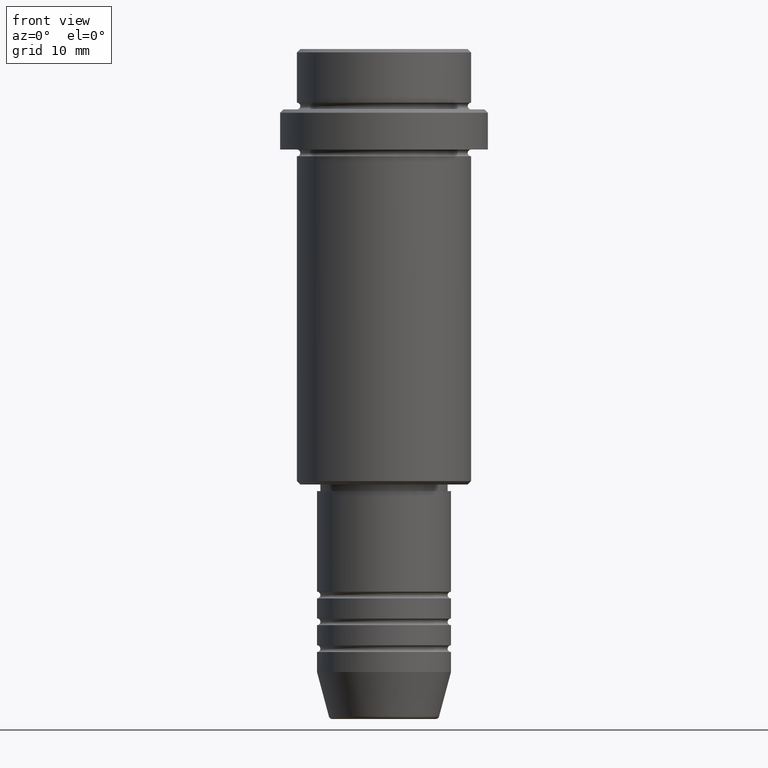
[diagram: clean part render]
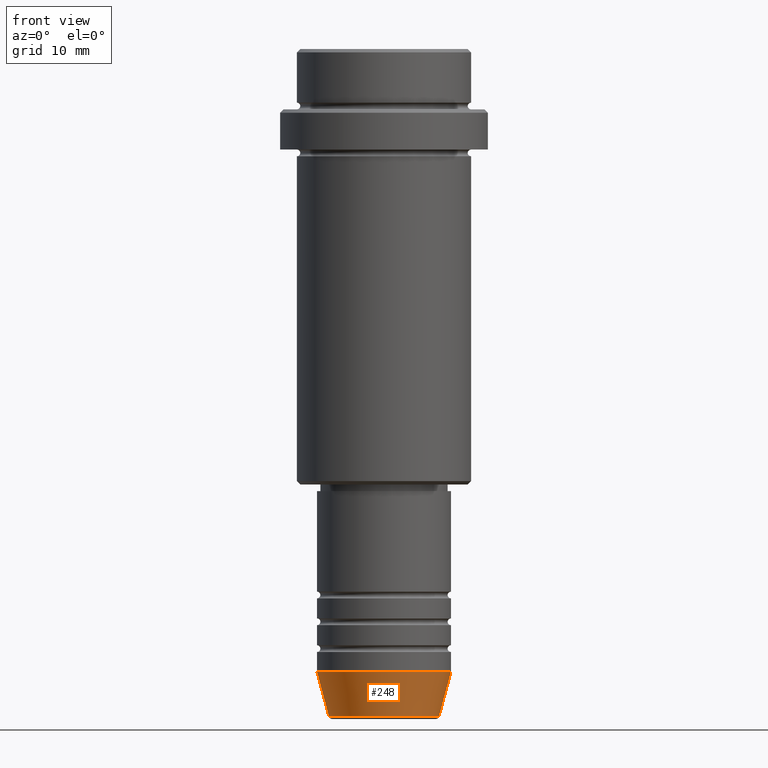
[diagram: same view with one face highlighted and labeled with its STEP entity id]
A machine part, front view. The second image highlights one B-rep face of the part: STEP entity #248.
In plain terms, the highlighted conical surface has half-angle 15 deg.
Its self-contained STEP definition (entity closure, byte-faithful):
#48 = AXIS2_PLACEMENT_3D ( 'NONE', #761, #99, #1084 ) ;
#84 = ORIENTED_EDGE ( 'NONE', *, *, #927, .T. ) ;
#98 = VECTOR ( 'NONE', #1381, 1000.000000000000114 ) ;
#99 = DIRECTION ( 'NONE',  ( -0.000000000000000000, -0.000000000000000000, 1.000000000000000000 ) ) ;
#129 = EDGE_CURVE ( 'NONE', #882, #694, #752, .T. ) ;
#248 = ADVANCED_FACE ( 'NONE', ( #1141 ), #280, .T. ) ;
#280 = CONICAL_SURFACE ( 'NONE', #48, 10.00000000000000000, 0.2617993877991502405 ) ;
#287 = CARTESIAN_POINT ( 'NONE',  ( -8.223655072137185940, 1.115877042642911659E-15, -99.62940952255127058 ) ) ;
#325 = CIRCLE ( 'NONE', #1122, 8.223655072137185940 ) ;
#338 = DIRECTION ( 'NONE',  ( 0.2588190451025214611, 0.000000000000000000, 0.9659258262890679791 ) ) ;
#459 = CARTESIAN_POINT ( 'NONE',  ( 0.000000000000000000, 0.000000000000000000, -99.62940952255127058 ) ) ;
#478 = EDGE_CURVE ( 'NONE', #610, #869, #325, .T. ) ;
#586 = ORIENTED_EDGE ( 'NONE', *, *, #478, .T. ) ;
#608 = DIRECTION ( 'NONE',  ( 1.000000000000000000, 0.000000000000000000, 0.000000000000000000 ) ) ;
#610 = VERTEX_POINT ( 'NONE', #287 ) ;
#624 = ORIENTED_EDGE ( 'NONE', *, *, #667, .F. ) ;
#643 = CARTESIAN_POINT ( 'NONE',  ( 10.00000000000000000, 0.000000000000000000, -93.00000000000000000 ) ) ;
#667 = EDGE_CURVE ( 'NONE', #610, #882, #933, .T. ) ;
#694 = VERTEX_POINT ( 'NONE', #643 ) ;
#703 = AXIS2_PLACEMENT_3D ( 'NONE', #821, #1158, #608 ) ;
#752 = CIRCLE ( 'NONE', #703, 10.00000000000000000 ) ;
#761 = CARTESIAN_POINT ( 'NONE',  ( 0.000000000000000000, 0.000000000000000000, -93.00000000000000000 ) ) ;
#781 = CARTESIAN_POINT ( 'NONE',  ( -10.00000000000000000, 1.224646799147353256E-15, -93.00000000000000000 ) ) ;
#821 = CARTESIAN_POINT ( 'NONE',  ( 0.000000000000000000, 0.000000000000000000, -93.00000000000000000 ) ) ;
#847 = ORIENTED_EDGE ( 'NONE', *, *, #129, .F. ) ;
#869 = VERTEX_POINT ( 'NONE', #1210 ) ;
#882 = VERTEX_POINT ( 'NONE', #781 ) ;
#899 = CARTESIAN_POINT ( 'NONE',  ( 10.00000000000000000, 0.000000000000000000, -93.00000000000000000 ) ) ;
#927 = EDGE_CURVE ( 'NONE', #869, #694, #1125, .T. ) ;
#933 = LINE ( 'NONE', #1362, #98 ) ;
#993 = DIRECTION ( 'NONE',  ( -0.000000000000000000, -0.000000000000000000, 1.000000000000000000 ) ) ;
#1084 = DIRECTION ( 'NONE',  ( 1.000000000000000000, 0.000000000000000000, 0.000000000000000000 ) ) ;
#1122 = AXIS2_PLACEMENT_3D ( 'NONE', #459, #993, #1226 ) ;
#1125 = LINE ( 'NONE', #899, #1312 ) ;
#1141 = FACE_OUTER_BOUND ( 'NONE', #1296, .T. ) ;
#1158 = DIRECTION ( 'NONE',  ( -0.000000000000000000, -0.000000000000000000, 1.000000000000000000 ) ) ;
#1210 = CARTESIAN_POINT ( 'NONE',  ( 8.223655072137185940, 0.000000000000000000, -99.62940952255127058 ) ) ;
#1226 = DIRECTION ( 'NONE',  ( 1.000000000000000000, 0.000000000000000000, 0.000000000000000000 ) ) ;
#1296 = EDGE_LOOP ( 'NONE', ( #624, #586, #84, #847 ) ) ;
#1312 = VECTOR ( 'NONE', #338, 1000.000000000000114 ) ;
#1362 = CARTESIAN_POINT ( 'NONE',  ( -10.00000000000000000, 1.224646799147353256E-15, -93.00000000000000000 ) ) ;
#1381 = DIRECTION ( 'NONE',  ( -0.2588190451025214611, 3.169619151431774186E-17, 0.9659258262890679791 ) ) ;